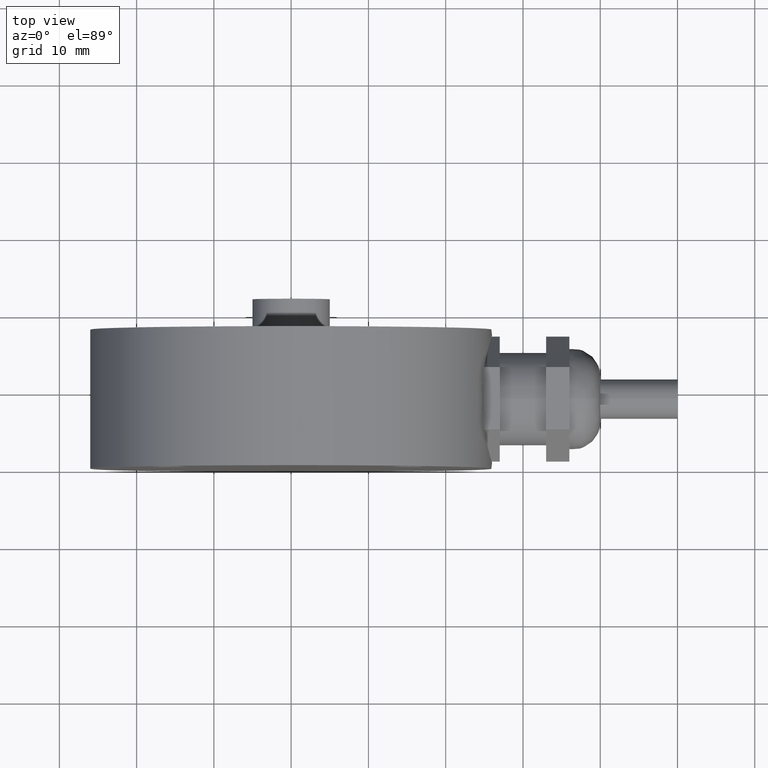
[diagram: clean part render]
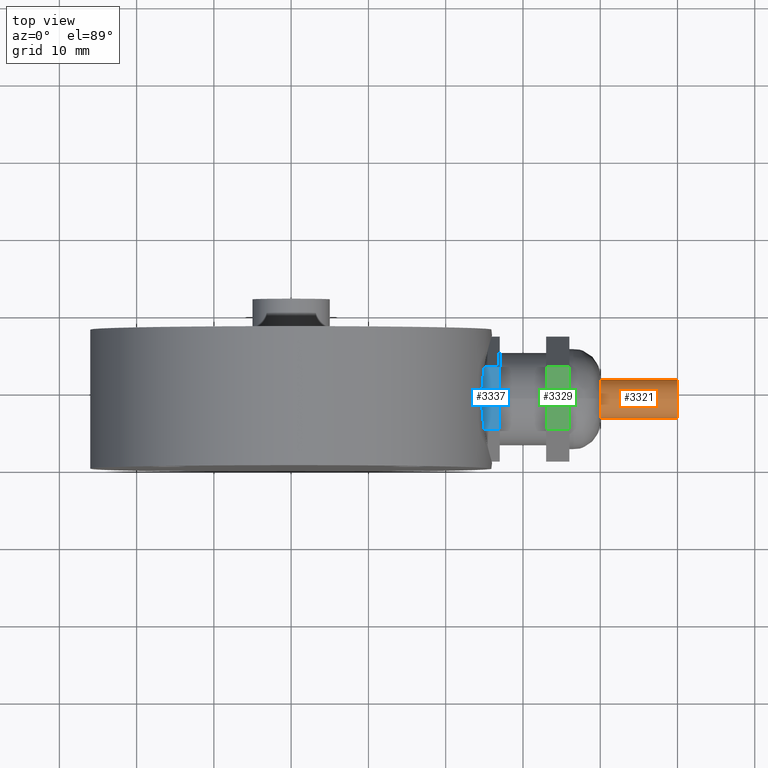
[diagram: same view with three faces highlighted in distinct colors, each labeled with its STEP entity id]
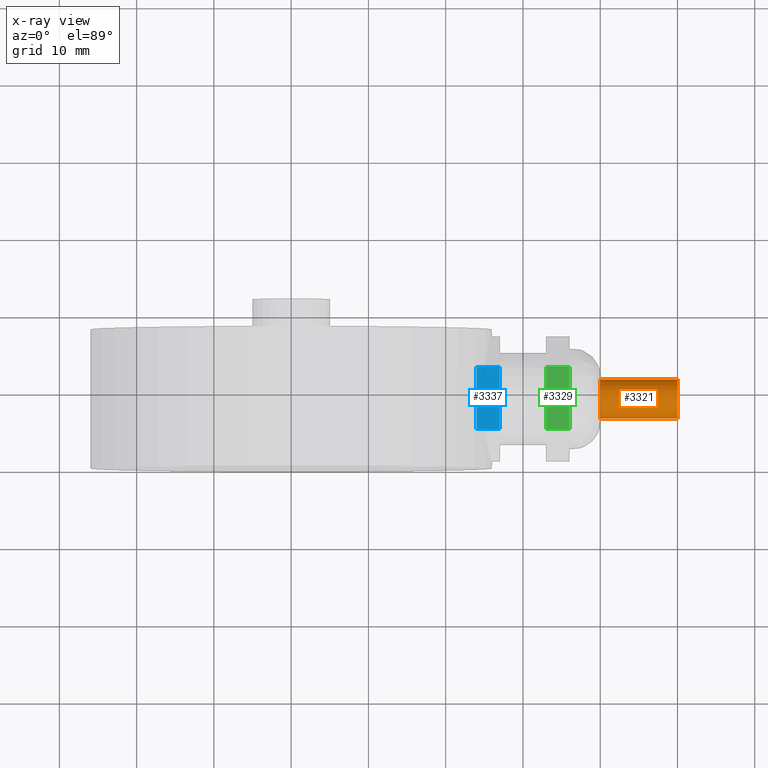
[diagram: x-ray of the same camera — body ghosted, the three highlighted faces saturated]
A machine part, top view with three faces highlighted in distinct colors.
The next image is the same camera in x-ray (body ghosted, the three faces saturated) — at least one of them is partly hidden behind the body in this view.
Their STEP definitions:

[orange] entity #3321 — the highlighted cylindrical surface (bore or boss wall) has radius 2.55 mm, axis along (1, 0, 0).
#353=FACE_OUTER_BOUND('',#566,.T.);
#566=EDGE_LOOP('',(#2102,#2103,#2104,#2105));
#790=LINE('',#4520,#995);
#995=VECTOR('',#3815,2.55);
#1201=CIRCLE('',#3553,2.55);
#1202=CIRCLE('',#3554,2.55);
#1246=VERTEX_POINT('',#4517);
#1247=VERTEX_POINT('',#4519);
#1575=EDGE_CURVE('',#1246,#1246,#1201,.T.);
#1576=EDGE_CURVE('',#1246,#1247,#790,.T.);
#1577=EDGE_CURVE('',#1247,#1247,#1202,.T.);
#2102=ORIENTED_EDGE('',*,*,#1575,.F.);
#2103=ORIENTED_EDGE('',*,*,#1576,.T.);
#2104=ORIENTED_EDGE('',*,*,#1577,.F.);
#2105=ORIENTED_EDGE('',*,*,#1576,.F.);
#3148=CYLINDRICAL_SURFACE('',#3552,2.55);
#3321=ADVANCED_FACE('',(#353),#3148,.T.);
#3552=AXIS2_PLACEMENT_3D('',#4516,#3811,#3812);
#3553=AXIS2_PLACEMENT_3D('',#4518,#3813,#3814);
#3554=AXIS2_PLACEMENT_3D('',#4521,#3816,#3817);
#3811=DIRECTION('center_axis',(1.,0.,0.));
#3812=DIRECTION('ref_axis',(0.,0.,-1.));
#3813=DIRECTION('center_axis',(1.,0.,0.));
#3814=DIRECTION('ref_axis',(0.,0.,-1.));
#3815=DIRECTION('',(-1.,0.,0.));
#3816=DIRECTION('center_axis',(-1.,0.,0.));
#3817=DIRECTION('ref_axis',(0.,0.,-1.));
#4516=CARTESIAN_POINT('Origin',(16.,0.,0.));
#4517=CARTESIAN_POINT('',(26.03,-3.12284933782575E-16,2.55));
#4518=CARTESIAN_POINT('Origin',(26.03,0.,0.));
#4519=CARTESIAN_POINT('',(16.,-3.12284933782575E-16,2.55));
#4520=CARTESIAN_POINT('',(16.,-3.12284933782575E-16,2.55));
#4521=CARTESIAN_POINT('Origin',(16.,0.,0.));

[blue] entity #3337 — the highlighted planar face has unit normal (0, 0, 1).
#338=PLANE('',#3575);
#369=FACE_OUTER_BOUND('',#585,.T.);
#585=EDGE_LOOP('',(#2167,#2168,#2169,#2170));
#817=LINE('',#4618,#1022);
#818=LINE('',#4621,#1023);
#819=LINE('',#4623,#1024);
#820=LINE('',#4624,#1025);
#1022=VECTOR('',#3884,10.);
#1023=VECTOR('',#3887,10.);
#1024=VECTOR('',#3888,10.);
#1025=VECTOR('',#3889,10.);
#1269=VERTEX_POINT('',#4614);
#1270=VERTEX_POINT('',#4616);
#1271=VERTEX_POINT('',#4620);
#1272=VERTEX_POINT('',#4622);
#1610=EDGE_CURVE('',#1269,#1270,#817,.T.);
#1611=EDGE_CURVE('',#1271,#1269,#818,.T.);
#1612=EDGE_CURVE('',#1272,#1270,#819,.T.);
#1613=EDGE_CURVE('',#1271,#1272,#820,.T.);
#2167=ORIENTED_EDGE('',*,*,#1611,.T.);
#2168=ORIENTED_EDGE('',*,*,#1610,.T.);
#2169=ORIENTED_EDGE('',*,*,#1612,.F.);
#2170=ORIENTED_EDGE('',*,*,#1613,.F.);
#3337=ADVANCED_FACE('',(#369),#338,.T.);
#3575=AXIS2_PLACEMENT_3D('',#4619,#3885,#3886);
#3884=DIRECTION('',(1.,0.,0.));
#3885=DIRECTION('center_axis',(0.,4.12063432796478E-16,1.));
#3886=DIRECTION('ref_axis',(0.,-1.,4.12063432796478E-16));
#3887=DIRECTION('',(0.,-1.,4.12063432796478E-16));
#3888=DIRECTION('',(0.,-1.,4.12063432796478E-16));
#3889=DIRECTION('',(1.,0.,0.));
#4614=CARTESIAN_POINT('',(0.,-4.04145188432738,7.));
#4616=CARTESIAN_POINT('',(3.,-4.04145188432738,7.));
#4618=CARTESIAN_POINT('',(0.,-4.04145188432738,7.));
#4619=CARTESIAN_POINT('Origin',(0.,4.04145188432738,7.));
#4620=CARTESIAN_POINT('',(0.,4.04145188432738,7.));
#4621=CARTESIAN_POINT('',(0.,4.04145188432738,7.));
#4622=CARTESIAN_POINT('',(3.,4.04145188432738,7.));
#4623=CARTESIAN_POINT('',(3.,4.04145188432738,7.));
#4624=CARTESIAN_POINT('',(0.,4.04145188432738,7.));

[green] entity #3329 — the highlighted planar face has unit normal (0, 0, 1).
#331=PLANE('',#3566);
#361=FACE_OUTER_BOUND('',#576,.T.);
#576=EDGE_LOOP('',(#2132,#2133,#2134,#2135));
#795=LINE('',#4569,#1000);
#802=LINE('',#4584,#1007);
#803=LINE('',#4587,#1008);
#804=LINE('',#4588,#1009);
#1000=VECTOR('',#3838,10.);
#1007=VECTOR('',#3851,10.);
#1008=VECTOR('',#3854,10.);
#1009=VECTOR('',#3855,10.);
#1254=VERTEX_POINT('',#4566);
#1255=VERTEX_POINT('',#4568);
#1260=VERTEX_POINT('',#4582);
#1261=VERTEX_POINT('',#4586);
#1586=EDGE_CURVE('',#1255,#1254,#795,.T.);
#1594=EDGE_CURVE('',#1254,#1260,#802,.T.);
#1595=EDGE_CURVE('',#1261,#1260,#803,.T.);
#1596=EDGE_CURVE('',#1255,#1261,#804,.T.);
#2132=ORIENTED_EDGE('',*,*,#1586,.T.);
#2133=ORIENTED_EDGE('',*,*,#1594,.T.);
#2134=ORIENTED_EDGE('',*,*,#1595,.F.);
#2135=ORIENTED_EDGE('',*,*,#1596,.F.);
#3329=ADVANCED_FACE('',(#361),#331,.T.);
#3566=AXIS2_PLACEMENT_3D('',#4585,#3852,#3853);
#3838=DIRECTION('',(0.,-1.,4.12063432796478E-16));
#3851=DIRECTION('',(1.,0.,0.));
#3852=DIRECTION('center_axis',(0.,4.12063432796478E-16,1.));
#3853=DIRECTION('ref_axis',(0.,-1.,4.12063432796478E-16));
#3854=DIRECTION('',(0.,-1.,4.12063432796478E-16));
#3855=DIRECTION('',(1.,0.,0.));
#4566=CARTESIAN_POINT('',(9.,-4.04145188432738,7.));
#4568=CARTESIAN_POINT('',(9.,4.04145188432738,7.));
#4569=CARTESIAN_POINT('',(9.,4.04145188432738,7.));
#4582=CARTESIAN_POINT('',(12.,-4.04145188432738,7.));
#4584=CARTESIAN_POINT('',(9.,-4.04145188432738,7.));
#4585=CARTESIAN_POINT('Origin',(9.,4.04145188432738,7.));
#4586=CARTESIAN_POINT('',(12.,4.04145188432738,7.));
#4587=CARTESIAN_POINT('',(12.,4.04145188432738,7.));
#4588=CARTESIAN_POINT('',(9.,4.04145188432738,7.));